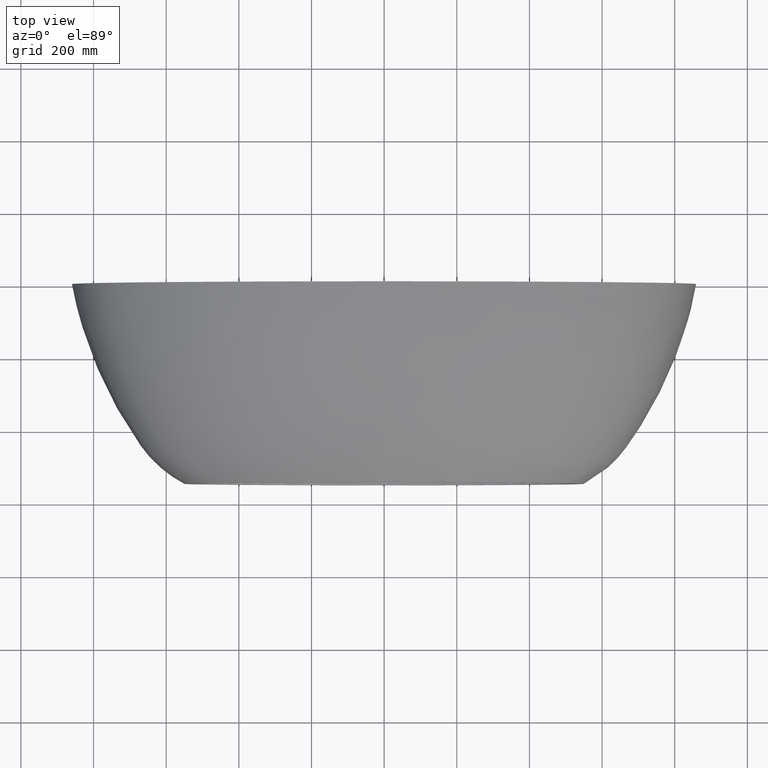
[diagram: clean part render]
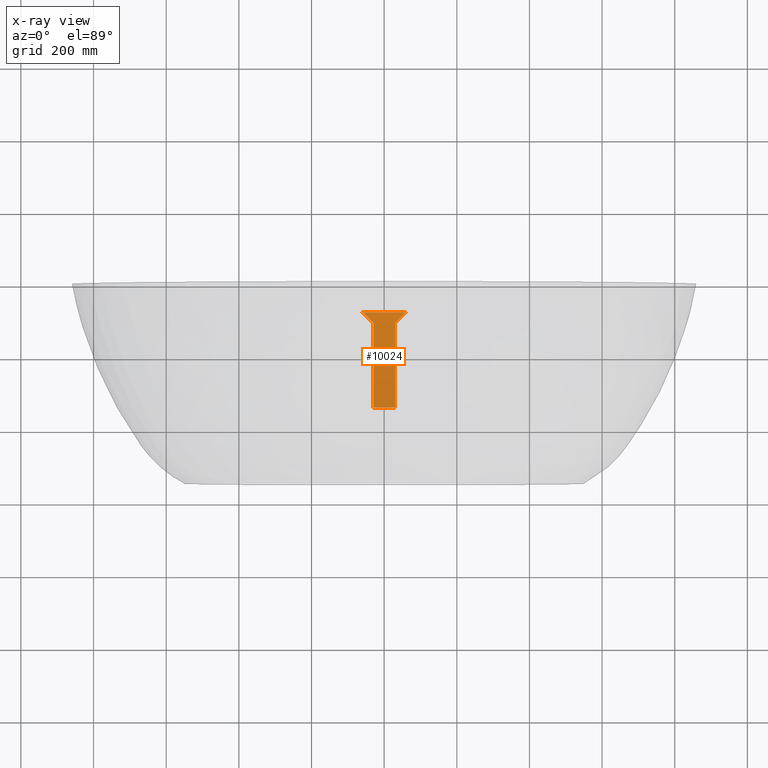
[diagram: x-ray — body ghosted, one internal face saturated and labeled with its STEP entity id]
A machine part, top view, then the same camera in x-ray: the body is ghosted and one INTERNAL B-rep face — a face not visible from any outside direction — is saturated and labeled: STEP entity #10024.
In plain terms, the highlighted cylindrical surface (partial cylindrical patch) has radius 1035 mm, axis along (1, -0, -0).
Its self-contained STEP definition (entity closure, byte-faithful):
#90 = AXIS2_PLACEMENT_3D ( 'NONE', #14146, #4327, #2664 ) ;
#305 = DIRECTION ( 'NONE',  ( 0.000000000000000000, 0.000000000000000000, -1.000000000000000000 ) ) ;
#734 = EDGE_CURVE ( 'NONE', #1032, #8842, #12554, .T. ) ;
#1032 = VERTEX_POINT ( 'NONE', #6523 ) ;
#1409 = CARTESIAN_POINT ( 'NONE',  ( -30.00000000000000000, -334.7252377314280238, -350.7179808906378753 ) ) ;
#1519 = VERTEX_POINT ( 'NONE', #2971 ) ;
#1601 = CYLINDRICAL_SURFACE ( 'NONE', #11321, 1035.000000000000455 ) ;
#1675 = ORIENTED_EDGE ( 'NONE', *, *, #5987, .T. ) ;
#1714 = VERTEX_POINT ( 'NONE', #1409 ) ;
#1809 = VERTEX_POINT ( 'NONE', #7998 ) ;
#1920 = CIRCLE ( 'NONE', #7204, 1035.000000000000455 ) ;
#2448 = CARTESIAN_POINT ( 'NONE',  ( -30.00000000000000000, 74.75350452729230710, 599.8356260344093016 ) ) ;
#2514 = ORIENTED_EDGE ( 'NONE', *, *, #4668, .T. ) ;
#2664 = DIRECTION ( 'NONE',  ( 0.000000000000000000, 0.000000000000000000, -1.000000000000000000 ) ) ;
#2894 =( BOUNDED_CURVE ( )  B_SPLINE_CURVE ( 3, ( #3448, #12199, #5750, #11126 ),
 .UNSPECIFIED., .F., .T. ) 
 B_SPLINE_CURVE_WITH_KNOTS ( ( 4, 4 ),
 ( 1.711114793593134786, 1.740453004345764443 ),
 .UNSPECIFIED. ) 
 CURVE ( )  GEOMETRIC_REPRESENTATION_ITEM ( )  RATIONAL_B_SPLINE_CURVE ( ( 1.000000000000000000, 0.9999282737353540895, 0.9999282737353540895, 1.000000000000000000 ) ) 
 REPRESENTATION_ITEM ( '' )  );
#2971 = CARTESIAN_POINT ( 'NONE',  ( -30.00000000000000000, -100.0000000000002416, -420.3046646390990873 ) ) ;
#3448 = CARTESIAN_POINT ( 'NONE',  ( 60.00000000000000000, -70.00000000000001421, -424.9918828308962588 ) ) ;
#3662 = VERTEX_POINT ( 'NONE', #12792 ) ;
#3922 = CARTESIAN_POINT ( 'NONE',  ( -30.00000000000000000, -334.7252377314280238, -350.7179808906378753 ) ) ;
#4108 = EDGE_CURVE ( 'NONE', #3662, #1809, #4221, .T. ) ;
#4221 = CIRCLE ( 'NONE', #90, 1035.000000000000455 ) ;
#4327 = DIRECTION ( 'NONE',  ( 1.000000000000000000, -0.000000000000000000, 0.000000000000000000 ) ) ;
#4668 = EDGE_CURVE ( 'NONE', #1714, #1519, #1920, .T. ) ;
#5097 = ORIENTED_EDGE ( 'NONE', *, *, #11375, .T. ) ;
#5125 = ORIENTED_EDGE ( 'NONE', *, *, #4108, .F. ) ;
#5750 = CARTESIAN_POINT ( 'NONE',  ( 39.97672142175527199, -90.02327857824521118, -422.0137109811404912 ) ) ;
#5886 = CARTESIAN_POINT ( 'NONE',  ( -30.00000000000000000, -70.00000000000001421, -424.9918828308962588 ) ) ;
#5987 = EDGE_CURVE ( 'NONE', #8842, #1809, #2894, .T. ) ;
#6081 = DIRECTION ( 'NONE',  ( 1.000000000000000000, -0.000000000000000000, -0.000000000000000000 ) ) ;
#6288 = VECTOR ( 'NONE', #6081, 1000.000000000000000 ) ;
#6523 = CARTESIAN_POINT ( 'NONE',  ( -60.00000000000000000, -70.00000000000001421, -424.9918828308962588 ) ) ;
#6969 = DIRECTION ( 'NONE',  ( 1.000000000000000000, -0.000000000000000000, 0.000000000000000000 ) ) ;
#7204 = AXIS2_PLACEMENT_3D ( 'NONE', #2448, #6969, #7826 ) ;
#7425 = VECTOR ( 'NONE', #12697, 1000.000000000000000 ) ;
#7749 =( BOUNDED_CURVE ( )  B_SPLINE_CURVE ( 3, ( #7852, #11086, #12231, #9957 ),
 .UNSPECIFIED., .F., .F. ) 
 B_SPLINE_CURVE_WITH_KNOTS ( ( 4, 4 ),
 ( 1.401139649244029339, 1.430477859996658552 ),
 .UNSPECIFIED. ) 
 CURVE ( )  GEOMETRIC_REPRESENTATION_ITEM ( )  RATIONAL_B_SPLINE_CURVE ( ( 1.000000000000000000, 0.9999282737353540895, 0.9999282737353540895, 1.000000000000000000 ) ) 
 REPRESENTATION_ITEM ( '' )  );
#7826 = DIRECTION ( 'NONE',  ( 0.000000000000000000, 0.000000000000000000, -1.000000000000000000 ) ) ;
#7852 = CARTESIAN_POINT ( 'NONE',  ( -30.00000000000000000, -100.0000000000002416, -420.3046646390990873 ) ) ;
#7905 = FACE_OUTER_BOUND ( 'NONE', #7969, .T. ) ;
#7969 = EDGE_LOOP ( 'NONE', ( #5125, #12646, #2514, #5097, #8021, #1675 ) ) ;
#7998 = CARTESIAN_POINT ( 'NONE',  ( 30.00000000000000000, -100.0000000000005400, -420.3046646390990873 ) ) ;
#8021 = ORIENTED_EDGE ( 'NONE', *, *, #734, .T. ) ;
#8365 = EDGE_CURVE ( 'NONE', #1714, #3662, #12814, .T. ) ;
#8617 = CARTESIAN_POINT ( 'NONE',  ( 60.00000000000000000, -70.00000000000001421, -424.9918828308962588 ) ) ;
#8842 = VERTEX_POINT ( 'NONE', #8617 ) ;
#9204 = CARTESIAN_POINT ( 'NONE',  ( -30.00000000000000000, 74.75350452729230710, 599.8356260344093016 ) ) ;
#9957 = CARTESIAN_POINT ( 'NONE',  ( -60.00000000000000000, -70.00000000000001421, -424.9918828308962588 ) ) ;
#10024 = ADVANCED_FACE ( 'NONE', ( #7905 ), #1601, .T. ) ;
#11086 = CARTESIAN_POINT ( 'NONE',  ( -39.97672142175552779, -90.02327857824481327, -422.0137109811404912 ) ) ;
#11126 = CARTESIAN_POINT ( 'NONE',  ( 30.00000000000000000, -100.0000000000005400, -420.3046646390990873 ) ) ;
#11321 = AXIS2_PLACEMENT_3D ( 'NONE', #9204, #13568, #305 ) ;
#11375 = EDGE_CURVE ( 'NONE', #1519, #1032, #7749, .T. ) ;
#12199 = CARTESIAN_POINT ( 'NONE',  ( 49.97743873585209684, -80.02256126414826554, -423.5762291186622974 ) ) ;
#12231 = CARTESIAN_POINT ( 'NONE',  ( -49.97743873585239527, -80.02256126414802395, -423.5762291186623543 ) ) ;
#12554 = LINE ( 'NONE', #5886, #7425 ) ;
#12646 = ORIENTED_EDGE ( 'NONE', *, *, #8365, .F. ) ;
#12697 = DIRECTION ( 'NONE',  ( 1.000000000000000000, -0.000000000000000000, -0.000000000000000000 ) ) ;
#12792 = CARTESIAN_POINT ( 'NONE',  ( 30.00000000000000000, -334.7252377314280238, -350.7179808906378753 ) ) ;
#12814 = LINE ( 'NONE', #3922, #6288 ) ;
#13568 = DIRECTION ( 'NONE',  ( 1.000000000000000000, -0.000000000000000000, -0.000000000000000000 ) ) ;
#14146 = CARTESIAN_POINT ( 'NONE',  ( 30.00000000000000000, 74.75350452729230710, 599.8356260344093016 ) ) ;